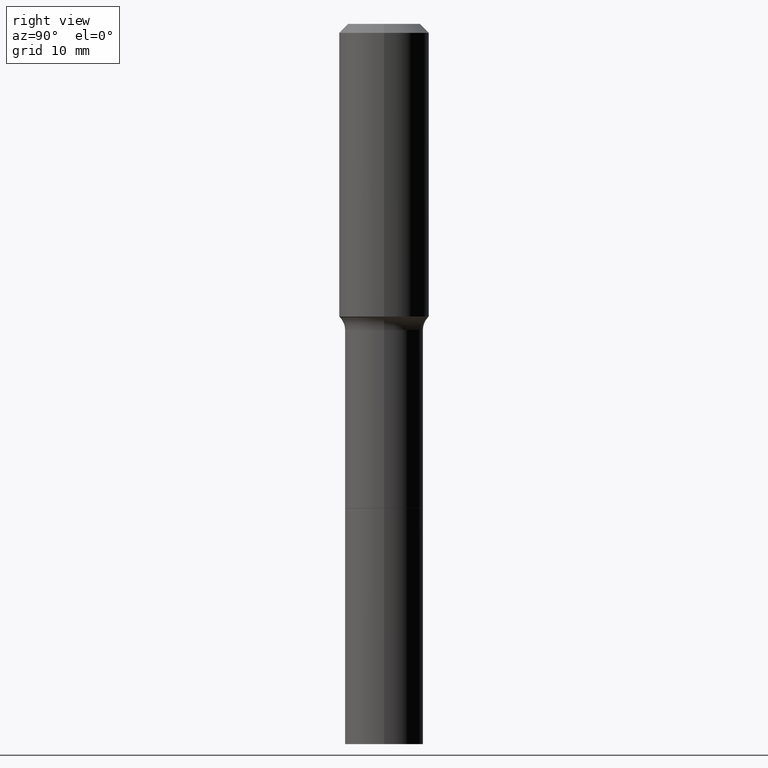
[diagram: clean part render]
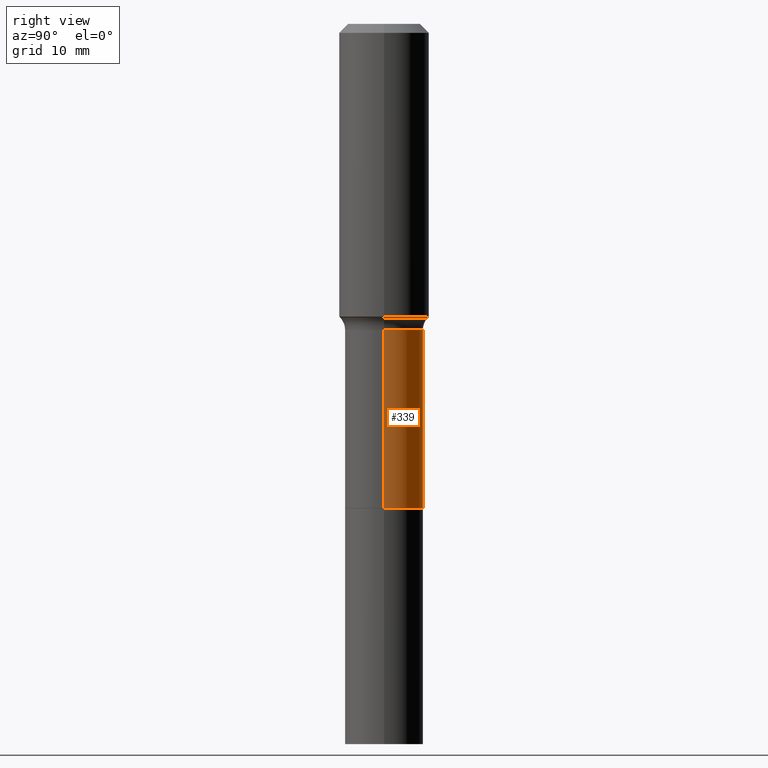
[diagram: same view with one face highlighted and labeled with its STEP entity id]
A machine part, right view. The second image highlights one B-rep face of the part: STEP entity #339.
In plain terms, the highlighted cylindrical surface (partial cylindrical patch) has radius 4.3497 mm, axis along (-0, 0, 1).
Its self-contained STEP definition (entity closure, byte-faithful):
#3 = EDGE_LOOP ( 'NONE', ( #33, #315, #164, #121 ) ) ;
#10 = VECTOR ( 'NONE', #87, 39.37007874015748143 ) ;
#33 = ORIENTED_EDGE ( 'NONE', *, *, #380, .T. ) ;
#63 = CARTESIAN_POINT ( 'NONE',  ( 3.273504543959424474E-29, -4.673696920175435525E-15, -1.338600000000000234 ) ) ;
#72 = DIRECTION ( 'NONE',  ( 1.000000000000000000, -6.982962677686266711E-15, 4.876176775795935793E-29 ) ) ;
#74 = CARTESIAN_POINT ( 'NONE',  ( -0.1712499999999999856, 1.216804434989171466E-15, -8.423676342061525262E-30 ) ) ;
#87 = DIRECTION ( 'NONE',  ( -2.445468806185136877E-29, 3.491481338843145188E-15, 1.000000000000000000 ) ) ;
#89 = AXIS2_PLACEMENT_3D ( 'NONE', #343, #348, #460 ) ;
#93 = CARTESIAN_POINT ( 'NONE',  ( 0.1712499999999999856, -1.195832358553773135E-15, 8.350452728550539064E-30 ) ) ;
#105 = DIRECTION ( 'NONE',  ( -2.445468806185136597E-29, 3.491481338843145583E-15, 1.000000000000000000 ) ) ;
#121 = ORIENTED_EDGE ( 'NONE', *, *, #160, .F. ) ;
#153 = CIRCLE ( 'NONE', #418, 0.1712499999999999023 ) ;
#154 = LINE ( 'NONE', #74, #10 ) ;
#160 = EDGE_CURVE ( 'NONE', #346, #467, #298, .T. ) ;
#164 = ORIENTED_EDGE ( 'NONE', *, *, #301, .F. ) ;
#224 = DIRECTION ( 'NONE',  ( 1.000000000000000000, -6.982962677686266711E-15, 0.000000000000000000 ) ) ;
#227 = CYLINDRICAL_SURFACE ( 'NONE', #411, 0.1712499999999999856 ) ;
#230 = DIRECTION ( 'NONE',  ( -2.445468806185136597E-29, 3.491481338843145583E-15, 1.000000000000000000 ) ) ;
#280 = CARTESIAN_POINT ( 'NONE',  ( 0.1712499999999999023, -5.869529278729208069E-15, -1.338600000000000234 ) ) ;
#298 = LINE ( 'NONE', #93, #360 ) ;
#301 = EDGE_CURVE ( 'NONE', #467, #354, #153, .T. ) ;
#314 = FACE_OUTER_BOUND ( 'NONE', #3, .T. ) ;
#315 = ORIENTED_EDGE ( 'NONE', *, *, #458, .T. ) ;
#320 = VERTEX_POINT ( 'NONE', #422 ) ;
#339 = ADVANCED_FACE ( 'NONE', ( #314 ), #227, .T. ) ;
#343 = CARTESIAN_POINT ( 'NONE',  ( 5.179747478380738195E-29, -7.395306623803667663E-15, -2.118100000000000094 ) ) ;
#346 = VERTEX_POINT ( 'NONE', #379 ) ;
#348 = DIRECTION ( 'NONE',  ( -2.445468806185136597E-29, 3.491481338843145583E-15, 1.000000000000000000 ) ) ;
#354 = VERTEX_POINT ( 'NONE', #462 ) ;
#360 = VECTOR ( 'NONE', #378, 39.37007874015748143 ) ;
#378 = DIRECTION ( 'NONE',  ( -2.445468806185136877E-29, 3.491481338843145188E-15, 1.000000000000000000 ) ) ;
#379 = CARTESIAN_POINT ( 'NONE',  ( 0.1712500000000000411, -8.591138982357440995E-15, -2.118100000000000094 ) ) ;
#380 = EDGE_CURVE ( 'NONE', #346, #320, #385, .T. ) ;
#385 = CIRCLE ( 'NONE', #89, 0.1712500000000000411 ) ;
#411 = AXIS2_PLACEMENT_3D ( 'NONE', #505, #105, #72 ) ;
#418 = AXIS2_PLACEMENT_3D ( 'NONE', #63, #230, #224 ) ;
#422 = CARTESIAN_POINT ( 'NONE',  ( -0.1712500000000000411, -4.817697337000379142E-15, -2.118100000000000094 ) ) ;
#458 = EDGE_CURVE ( 'NONE', #320, #354, #154, .T. ) ;
#460 = DIRECTION ( 'NONE',  ( 1.000000000000000000, -6.982962677686267499E-15, 0.000000000000000000 ) ) ;
#462 = CARTESIAN_POINT ( 'NONE',  ( -0.1712499999999999023, -4.817697337000379931E-15, -1.338600000000000234 ) ) ;
#467 = VERTEX_POINT ( 'NONE', #280 ) ;
#505 = CARTESIAN_POINT ( 'NONE',  ( 0.000000000000000000, 0.000000000000000000, 0.000000000000000000 ) ) ;